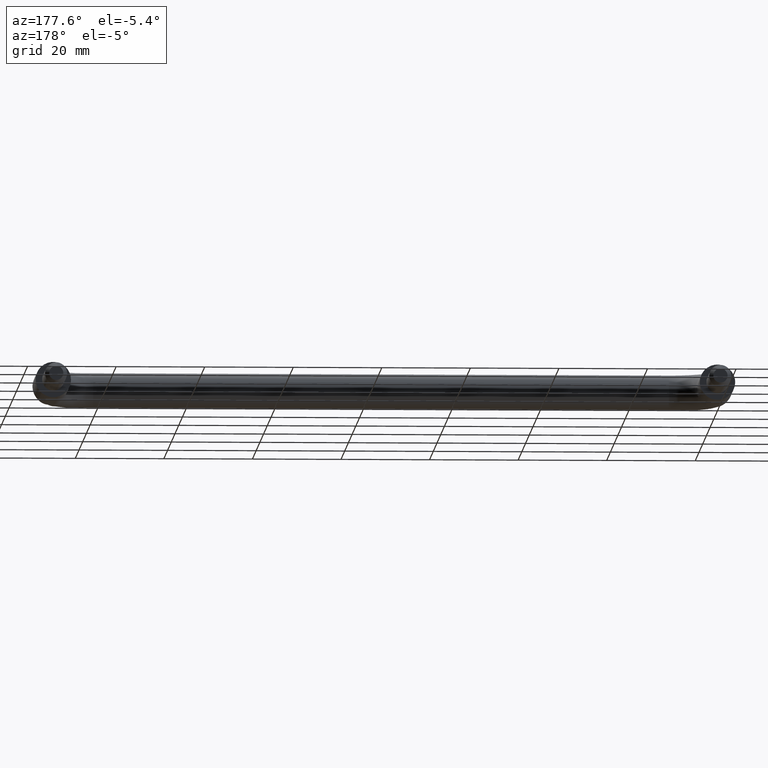
[diagram: clean part render]
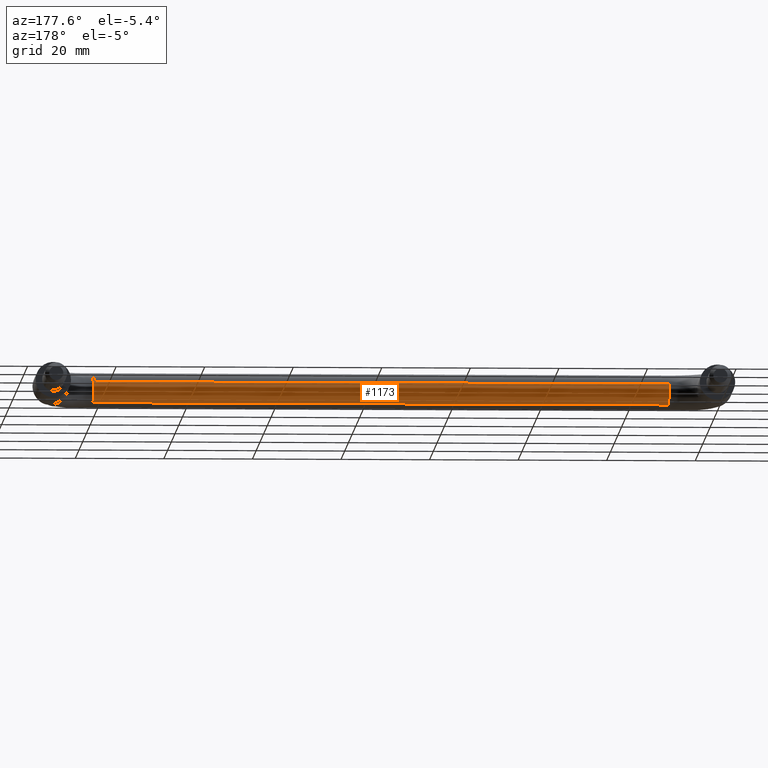
[diagram: same view with one face highlighted and labeled with its STEP entity id]
A machine part, auxiliary view. The second image highlights one B-rep face of the part: STEP entity #1173.
In plain terms, the highlighted face is a freeform B-spline surface patch.
Its self-contained STEP definition (entity closure, byte-faithful):
#954=CARTESIAN_POINT('',(140.0,-23.417578029477610,1.779396758769257));
#955=VERTEX_POINT('',#954);
#973=CARTESIAN_POINT('',(9.999999999885187,-23.417578029538809,1.779396758739924));
#974=VERTEX_POINT('',#973);
#975=CARTESIAN_POINT('',(9.999999999885187,-23.417578029538809,1.779396758739924));
#976=CARTESIAN_POINT('',(140.0,-23.417578029477610,1.779396758769257));
#977=QUASI_UNIFORM_CURVE('',1,(#975,#976),.UNSPECIFIED.,.F.,.U.);
#978=EDGE_CURVE('',#974,#955,#977,.T.);
#1027=CARTESIAN_POINT('',(10.0,-24.246582505429380,-2.901498251006061));
#1028=VERTEX_POINT('',#1027);
#1044=CARTESIAN_POINT('',(140.000000000115700,-24.246582932973361,-2.901498656702296));
#1045=VERTEX_POINT('',#1044);
#1046=CARTESIAN_POINT('',(10.0,-24.246582505429380,-2.901498251006061));
#1047=CARTESIAN_POINT('',(140.000000000115700,-24.246582932973361,-2.901498656702296));
#1048=QUASI_UNIFORM_CURVE('',1,(#1046,#1047),.UNSPECIFIED.,.F.,.U.);
#1049=EDGE_CURVE('',#1028,#1045,#1048,.T.);
#1099=CARTESIAN_POINT('',(6.749999998630598,-24.246581697224990,-2.901497484049150));
#1100=CARTESIAN_POINT('',(6.749999998630598,-22.102966599207015,-0.867282711355056));
#1101=CARTESIAN_POINT('',(6.749999998630599,-23.417578029456681,1.779396758727104));
#1102=CARTESIAN_POINT('',(143.331250010542190,-24.246581697224968,-2.901497484049150));
#1103=CARTESIAN_POINT('',(143.331250010542220,-22.102966599207001,-0.867282711355056));
#1104=CARTESIAN_POINT('',(143.331250010542190,-23.417578029456667,1.779396758727104));
#1112=(BOUNDED_SURFACE()B_SPLINE_SURFACE(2,1,((#1099,#1102),(#1100,#1103),(#1101,#1104)),.UNSPECIFIED.,.F.,.F.,.U.)B_SPLINE_SURFACE_WITH_KNOTS((3,3),(2,2),(0.0,5.265794895546584),(0.0,136.581250011911610),.UNSPECIFIED.)GEOMETRIC_REPRESENTATION_ITEM()RATIONAL_B_SPLINE_SURFACE(((1.0,1.0),(0.765685424949238,0.765685424949238),(0.906274169979695,0.906274169979695)))REPRESENTATION_ITEM('')SURFACE());
#1113=CARTESIAN_POINT('',(140.0,-23.0,0.0));
#1114=VERTEX_POINT('',#1113);
#1115=CARTESIAN_POINT('',(140.0,-23.0,0.0));
#1116=CARTESIAN_POINT('',(140.000000000000030,-23.000000000000004,0.938695717929676));
#1117=CARTESIAN_POINT('',(139.999999999999940,-23.417578029477614,1.779396758769257));
#1125=(BOUNDED_CURVE()B_SPLINE_CURVE(2,(#1115,#1116,#1117),.UNSPECIFIED.,.F.,.U.)B_SPLINE_CURVE_WITH_KNOTS((3,3),(0.500000000000000,0.575619190626044),.UNSPECIFIED.)CURVE()GEOMETRIC_REPRESENTATION_ITEM()RATIONAL_B_SPLINE_CURVE((1.0,0.911406607413880,0.876408099965182))REPRESENTATION_ITEM(''));
#1126=EDGE_CURVE('',#1114,#955,#1125,.T.);
#1127=ORIENTED_EDGE('',*,*,#1126,.F.);
#1128=CARTESIAN_POINT('',(140.000000000115760,-24.246582932973364,-2.901498656702296));
#1129=CARTESIAN_POINT('',(139.999999999999970,-23.0,-1.718536632860814));
#1130=CARTESIAN_POINT('',(140.0,-23.0,0.0));
#1138=(BOUNDED_CURVE()B_SPLINE_CURVE(2,(#1128,#1129,#1130),.UNSPECIFIED.,.F.,.U.)B_SPLINE_CURVE_WITH_KNOTS((3,3),(0.371049462387032,0.500000000000000),.UNSPECIFIED.)CURVE()GEOMETRIC_REPRESENTATION_ITEM()RATIONAL_B_SPLINE_CURVE((0.853699666128967,0.848925047883251,1.0))REPRESENTATION_ITEM(''));
#1139=EDGE_CURVE('',#1045,#1114,#1138,.T.);
#1140=ORIENTED_EDGE('',*,*,#1139,.F.);
#1141=ORIENTED_EDGE('',*,*,#1049,.F.);
#1142=CARTESIAN_POINT('',(10.0,-23.0,0.0));
#1143=VERTEX_POINT('',#1142);
#1144=CARTESIAN_POINT('',(10.0,-24.246582505429377,-2.901498251006062));
#1145=CARTESIAN_POINT('',(10.0,-23.0,-1.718536283793368));
#1146=CARTESIAN_POINT('',(10.0,-23.0,0.0));
#1154=(BOUNDED_CURVE()B_SPLINE_CURVE(2,(#1144,#1145,#1146),.UNSPECIFIED.,.F.,.U.)B_SPLINE_CURVE_WITH_KNOTS((3,3),(0.371049484622336,0.500000000000000),.UNSPECIFIED.)CURVE()GEOMETRIC_REPRESENTATION_ITEM()RATIONAL_B_SPLINE_CURVE((0.853699664482370,0.848925073933530,1.0))REPRESENTATION_ITEM(''));
#1155=EDGE_CURVE('',#1028,#1143,#1154,.T.);
#1156=ORIENTED_EDGE('',*,*,#1155,.T.);
#1157=CARTESIAN_POINT('',(10.0,-23.0,0.0));
#1158=CARTESIAN_POINT('',(10.0,-23.000000000000004,0.938695717893990));
#1159=CARTESIAN_POINT('',(9.999999999885187,-23.417578029538817,1.779396758739924));
#1167=(BOUNDED_CURVE()B_SPLINE_CURVE(2,(#1157,#1158,#1159),.UNSPECIFIED.,.F.,.U.)B_SPLINE_CURVE_WITH_KNOTS((3,3),(0.500000000000000,0.575619190623424),.UNSPECIFIED.)CURVE()GEOMETRIC_REPRESENTATION_ITEM()RATIONAL_B_SPLINE_CURVE((1.0,0.911406607416949,0.876408099967607))REPRESENTATION_ITEM(''));
#1168=EDGE_CURVE('',#1143,#974,#1167,.T.);
#1169=ORIENTED_EDGE('',*,*,#1168,.T.);
#1170=ORIENTED_EDGE('',*,*,#978,.T.);
#1171=EDGE_LOOP('',(#1127,#1140,#1141,#1156,#1169,#1170));
#1172=FACE_OUTER_BOUND('',#1171,.T.);
#1173=ADVANCED_FACE('',(#1172),#1112,.T.);